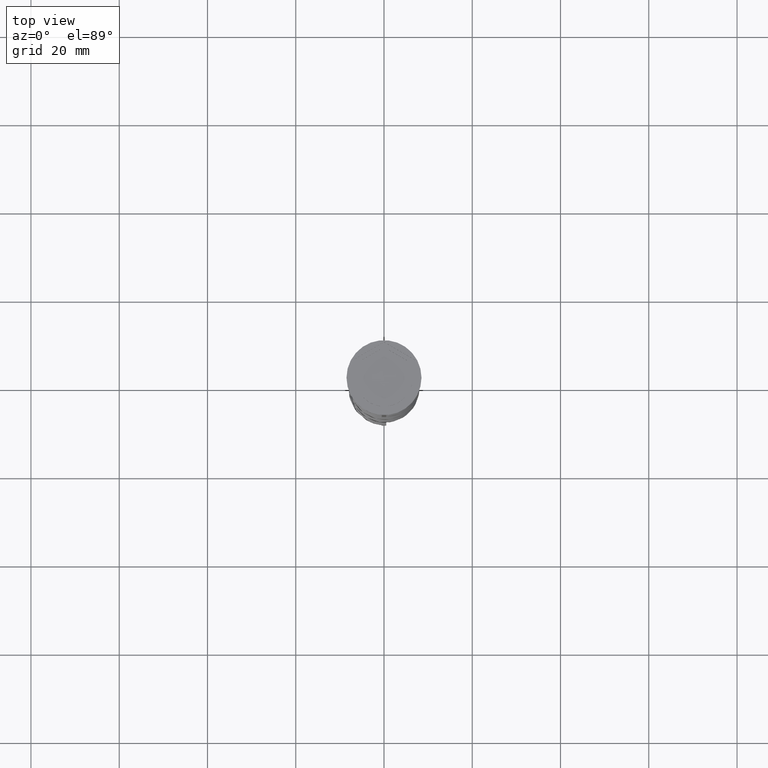
[diagram: clean part render]
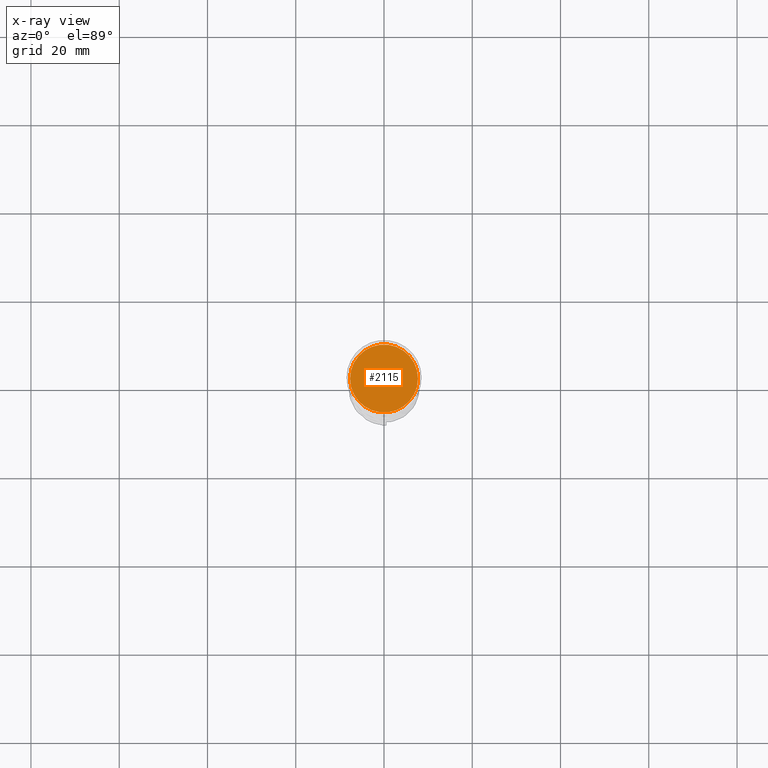
[diagram: x-ray — body ghosted, one internal face saturated and labeled with its STEP entity id]
A machine part, top view, then the same camera in x-ray: the body is ghosted and one INTERNAL B-rep face — a face not visible from any outside direction — is saturated and labeled: STEP entity #2115.
In plain terms, the highlighted planar face has unit normal (0, 0, -1).
Its self-contained STEP definition (entity closure, byte-faithful):
#138 = DIRECTION ( 'NONE',  ( -1.000000000000000000, 0.000000000000000000, -0.000000000000000000 ) ) ;
#506 = DIRECTION ( 'NONE',  ( -1.000000000000000000, 0.000000000000000000, 0.000000000000000000 ) ) ;
#1013 = VERTEX_POINT ( 'NONE', #1824 ) ;
#1146 = CARTESIAN_POINT ( 'NONE',  ( 0.000000000000000000, 0.000000000000000000, -12.00000000000000000 ) ) ;
#1185 = CARTESIAN_POINT ( 'NONE',  ( 0.000000000000000000, 0.000000000000000000, -12.00000000000000000 ) ) ;
#1206 = DIRECTION ( 'NONE',  ( -0.000000000000000000, -0.000000000000000000, 1.000000000000000000 ) ) ;
#1209 = EDGE_CURVE ( 'NONE', #1331, #1013, #3419, .T. ) ;
#1331 = VERTEX_POINT ( 'NONE', #2354 ) ;
#1695 = DIRECTION ( 'NONE',  ( -1.000000000000000000, 0.000000000000000000, 0.000000000000000000 ) ) ;
#1824 = CARTESIAN_POINT ( 'NONE',  ( 7.700000000000001954, 9.613477373306725302E-16, -12.00000000000000000 ) ) ;
#1919 = PLANE ( 'NONE',  #2684 ) ;
#2051 = EDGE_LOOP ( 'NONE', ( #3660, #3453 ) ) ;
#2082 = AXIS2_PLACEMENT_3D ( 'NONE', #1146, #3653, #506 ) ;
#2115 = ADVANCED_FACE ( 'NONE', ( #3577 ), #1919, .F. ) ;
#2148 = CARTESIAN_POINT ( 'NONE',  ( 0.000000000000000000, 0.000000000000000000, -12.00000000000000000 ) ) ;
#2354 = CARTESIAN_POINT ( 'NONE',  ( -7.700000000000001954, 0.000000000000000000, -12.00000000000000000 ) ) ;
#2634 = CIRCLE ( 'NONE', #2687, 7.700000000000001954 ) ;
#2684 = AXIS2_PLACEMENT_3D ( 'NONE', #2148, #3034, #138 ) ;
#2687 = AXIS2_PLACEMENT_3D ( 'NONE', #1185, #1206, #1695 ) ;
#3034 = DIRECTION ( 'NONE',  ( 0.000000000000000000, 0.000000000000000000, -1.000000000000000000 ) ) ;
#3233 = EDGE_CURVE ( 'NONE', #1013, #1331, #2634, .T. ) ;
#3419 = CIRCLE ( 'NONE', #2082, 7.700000000000001954 ) ;
#3453 = ORIENTED_EDGE ( 'NONE', *, *, #3233, .T. ) ;
#3577 = FACE_OUTER_BOUND ( 'NONE', #2051, .T. ) ;
#3653 = DIRECTION ( 'NONE',  ( -0.000000000000000000, -0.000000000000000000, 1.000000000000000000 ) ) ;
#3660 = ORIENTED_EDGE ( 'NONE', *, *, #1209, .T. ) ;